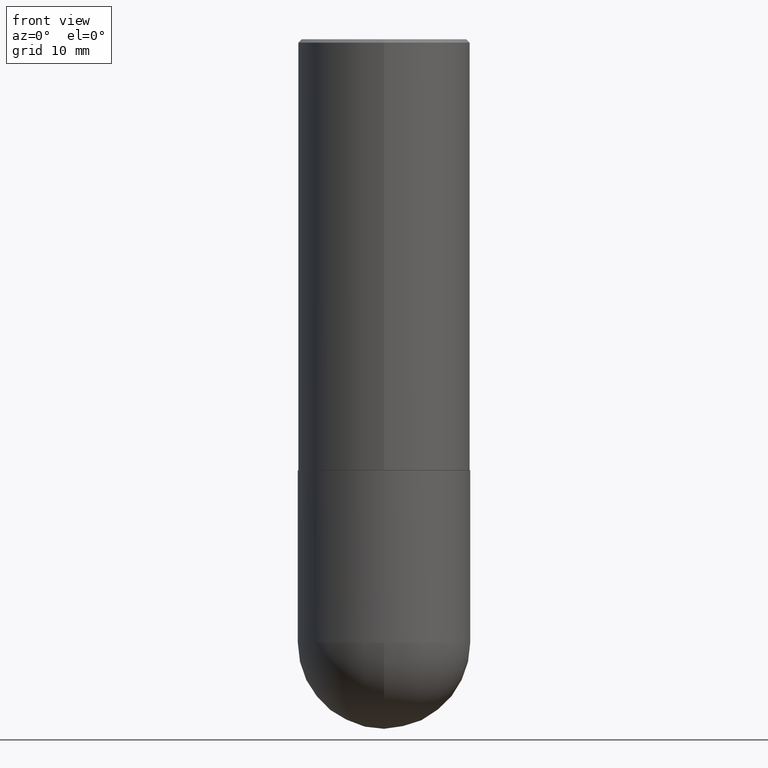
[diagram: clean part render]
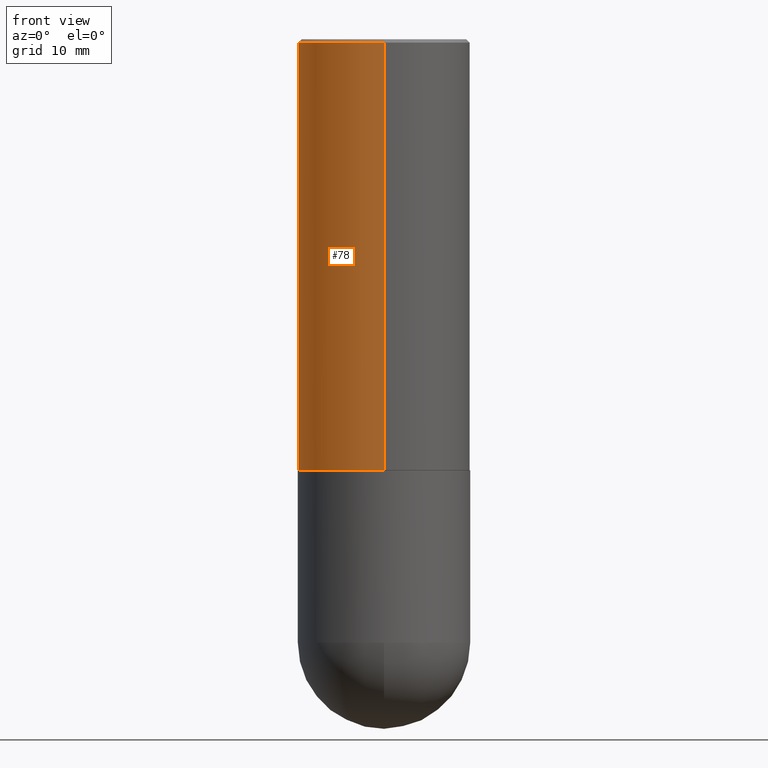
[diagram: same view with one face highlighted and labeled with its STEP entity id]
A machine part, front view. The second image highlights one B-rep face of the part: STEP entity #78.
In plain terms, the highlighted cylindrical surface (partial cylindrical patch) has radius 12.7 mm, axis along (-0, 0, 1).
Its self-contained STEP definition (entity closure, byte-faithful):
#16 = CARTESIAN_POINT ( 'NONE',  ( 0.000000000000000000, 0.000000000000000000, 0.000000000000000000 ) ) ;
#23 = DIRECTION ( 'NONE',  ( -2.446673915175560132E-29, 3.489755554178314733E-15, 1.000000000000000000 ) ) ;
#33 = CARTESIAN_POINT ( 'NONE',  ( 3.552713678800533273E-15, 0.4999999999999916178, -2.499000000000001886 ) ) ;
#36 = FACE_OUTER_BOUND ( 'NONE', #245, .T. ) ;
#38 = ORIENTED_EDGE ( 'NONE', *, *, #210, .T. ) ;
#60 = ORIENTED_EDGE ( 'NONE', *, *, #148, .T. ) ;
#73 = DIRECTION ( 'NONE',  ( -6.982962677686266711E-15, -1.000000000000000000, 3.278217592397114284E-15 ) ) ;
#78 = ADVANCED_FACE ( 'NONE', ( #36 ), #170, .T. ) ;
#80 = DIRECTION ( 'NONE',  ( -2.446673915175560132E-29, 3.489755554178315128E-15, 1.000000000000000000 ) ) ;
#84 = CIRCLE ( 'NONE', #204, 0.5000000000000002220 ) ;
#91 = CARTESIAN_POINT ( 'NONE',  ( 3.491481338843133355E-15, 0.4999999999999999445, -0.02000000000000185310 ) ) ;
#97 = EDGE_CURVE ( 'NONE', #352, #317, #236, .T. ) ;
#108 = DIRECTION ( 'NONE',  ( -2.446673915175560132E-29, 3.489755554178314733E-15, 1.000000000000000000 ) ) ;
#118 = AXIS2_PLACEMENT_3D ( 'NONE', #16, #319, #152 ) ;
#129 = LINE ( 'NONE', #218, #406 ) ;
#146 = VERTEX_POINT ( 'NONE', #233 ) ;
#148 = EDGE_CURVE ( 'NONE', #352, #281, #84, .T. ) ;
#152 = DIRECTION ( 'NONE',  ( -6.982962677686265922E-15, -1.000000000000000000, 3.489755554178314733E-15 ) ) ;
#158 = AXIS2_PLACEMENT_3D ( 'NONE', #250, #23, #351 ) ;
#170 = CYLINDRICAL_SURFACE ( 'NONE', #118, 0.5000000000000001110 ) ;
#191 = DIRECTION ( 'NONE',  ( -2.446673915175560132E-29, 3.489755554178315128E-15, 1.000000000000000000 ) ) ;
#203 = ORIENTED_EDGE ( 'NONE', *, *, #97, .F. ) ;
#204 = AXIS2_PLACEMENT_3D ( 'NONE', #372, #108, #73 ) ;
#210 = EDGE_CURVE ( 'NONE', #281, #146, #129, .T. ) ;
#214 = ORIENTED_EDGE ( 'NONE', *, *, #311, .F. ) ;
#218 = CARTESIAN_POINT ( 'NONE',  ( -3.491481338843133750E-15, -0.5000000000000001110, 1.744877777089157761E-15 ) ) ;
#233 = CARTESIAN_POINT ( 'NONE',  ( -3.430248998885764992E-15, -0.5000000000000001110, -0.01999999999999835937 ) ) ;
#236 = LINE ( 'NONE', #376, #304 ) ;
#241 = CIRCLE ( 'NONE', #158, 0.5000000000000000000 ) ;
#245 = EDGE_LOOP ( 'NONE', ( #203, #60, #38, #214 ) ) ;
#250 = CARTESIAN_POINT ( 'NONE',  ( 4.893347830351146574E-31, -6.979511108356666888E-17, -0.02000000000000010797 ) ) ;
#281 = VERTEX_POINT ( 'NONE', #387 ) ;
#304 = VECTOR ( 'NONE', #80, 39.37007874015748143 ) ;
#311 = EDGE_CURVE ( 'NONE', #317, #146, #241, .T. ) ;
#317 = VERTEX_POINT ( 'NONE', #91 ) ;
#319 = DIRECTION ( 'NONE',  ( -2.446673915175560132E-29, 3.489755554178314733E-15, 1.000000000000000000 ) ) ;
#351 = DIRECTION ( 'NONE',  ( -6.982962677686265922E-15, -1.000000000000000000, 3.491643216902136408E-15 ) ) ;
#352 = VERTEX_POINT ( 'NONE', #33 ) ;
#372 = CARTESIAN_POINT ( 'NONE',  ( 6.114238114023726435E-29, -8.720899129891609258E-15, -2.499000000000000110 ) ) ;
#376 = CARTESIAN_POINT ( 'NONE',  ( 3.552713678800501718E-15, 0.5000000000000001110, -1.744877777089157761E-15 ) ) ;
#387 = CARTESIAN_POINT ( 'NONE',  ( -3.491481338843073796E-15, -0.5000000000000089928, -2.498999999999998778 ) ) ;
#406 = VECTOR ( 'NONE', #191, 39.37007874015748143 ) ;